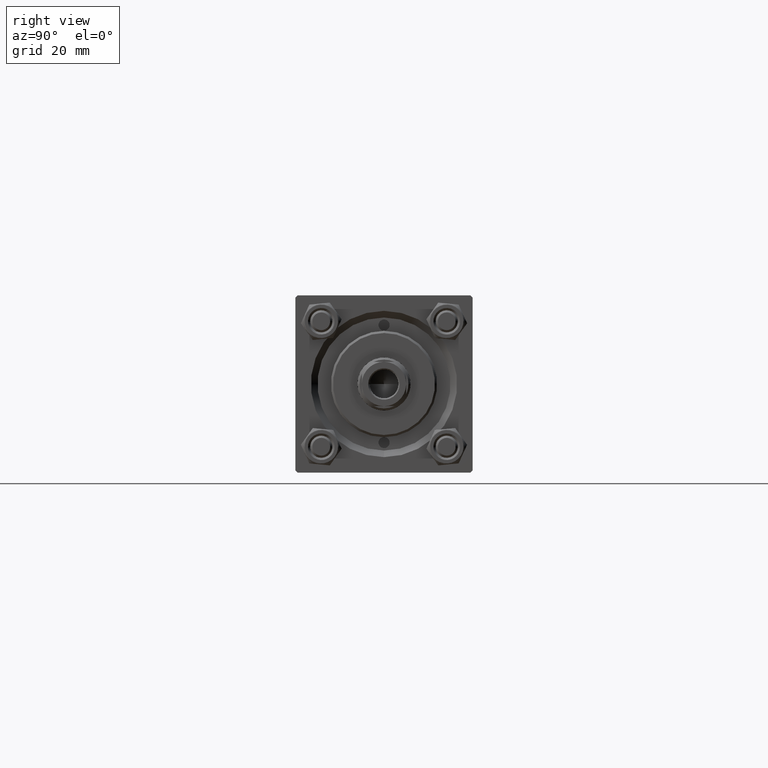
[diagram: clean part render]
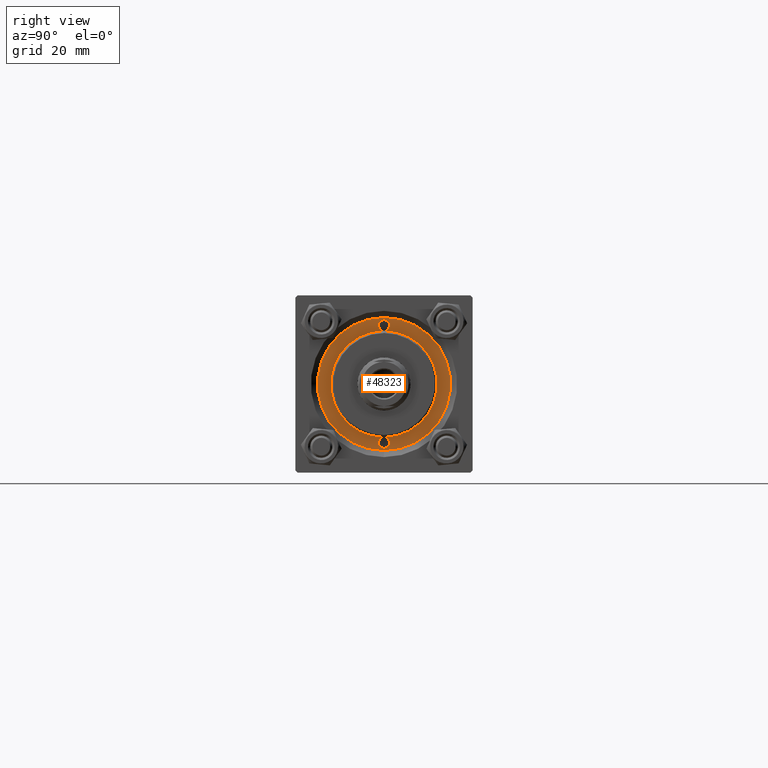
[diagram: same view with one face highlighted and labeled with its STEP entity id]
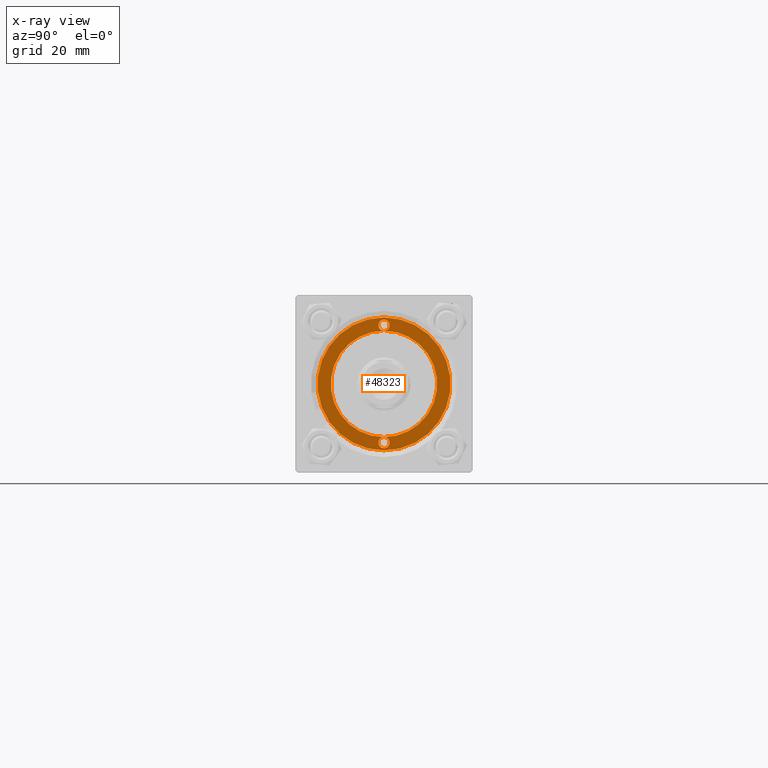
[diagram: x-ray of the same camera — body ghosted, the highlighted face saturated]
A machine part, right view. The second image highlights one B-rep face of the part: STEP entity #48323.
The next image is the same camera in x-ray: the body ghosted, the highlighted face saturated — about 0% of this face is hidden behind the body in this view.
In plain terms, the highlighted planar face has unit normal (1, 0, -0).
Its self-contained STEP definition (entity closure, byte-faithful):
#73 = EDGE_CURVE ( 'NONE', #36501, #44663, #46209, .T. ) ;
#397 = DIRECTION ( 'NONE',  ( 1.000000000000000000, 0.000000000000000000, 0.000000000000000000 ) ) ;
#400 = FACE_OUTER_BOUND ( 'NONE', #28099, .T. ) ;
#852 = EDGE_CURVE ( 'NONE', #20003, #15915, #19572, .T. ) ;
#2304 = AXIS2_PLACEMENT_3D ( 'NONE', #35248, #4183, #397 ) ;
#2479 = AXIS2_PLACEMENT_3D ( 'NONE', #18893, #26231, #19144 ) ;
#2691 = AXIS2_PLACEMENT_3D ( 'NONE', #15184, #11394, #42191 ) ;
#3589 = CARTESIAN_POINT ( 'NONE',  ( 13.25000000000000000, 0.000000000000000000, 28.69999999999999929 ) ) ;
#3684 = AXIS2_PLACEMENT_3D ( 'NONE', #34250, #15299, #38530 ) ;
#3839 = DIRECTION ( 'NONE',  ( 0.000000000000000000, 0.000000000000000000, 1.000000000000000000 ) ) ;
#4183 = DIRECTION ( 'NONE',  ( 0.000000000000000000, 0.000000000000000000, 1.000000000000000000 ) ) ;
#5446 = EDGE_CURVE ( 'NONE', #15915, #20003, #48663, .T. ) ;
#5473 = DIRECTION ( 'NONE',  ( 1.000000000000000000, 0.000000000000000000, 0.000000000000000000 ) ) ;
#5586 = CARTESIAN_POINT ( 'NONE',  ( -14.49999999999999822, 1.530808498934190585E-16, 28.69999999999999929 ) ) ;
#7237 = DIRECTION ( 'NONE',  ( 0.000000000000000000, 0.000000000000000000, 1.000000000000000000 ) ) ;
#10387 = CIRCLE ( 'NONE', #2304, 1.249999999999997558 ) ;
#10778 = EDGE_CURVE ( 'NONE', #35843, #47538, #25449, .T. ) ;
#11394 = DIRECTION ( 'NONE',  ( 0.000000000000000000, 0.000000000000000000, 1.000000000000000000 ) ) ;
#11770 = DIRECTION ( 'NONE',  ( 1.000000000000000000, 0.000000000000000000, -0.000000000000000000 ) ) ;
#12011 = FACE_BOUND ( 'NONE', #22355, .T. ) ;
#12066 = CARTESIAN_POINT ( 'NONE',  ( 13.25000000000000000, 0.000000000000000000, 28.69999999999999929 ) ) ;
#15184 = CARTESIAN_POINT ( 'NONE',  ( 0.000000000000000000, 0.000000000000000000, 28.69999999999999929 ) ) ;
#15299 = DIRECTION ( 'NONE',  ( 0.000000000000000000, 0.000000000000000000, 1.000000000000000000 ) ) ;
#15775 = CARTESIAN_POINT ( 'NONE',  ( 14.49999999999999822, 0.000000000000000000, 28.69999999999999929 ) ) ;
#15915 = VERTEX_POINT ( 'NONE', #15775 ) ;
#16672 = ORIENTED_EDGE ( 'NONE', *, *, #852, .F. ) ;
#17394 = EDGE_CURVE ( 'NONE', #44663, #36501, #44710, .T. ) ;
#18893 = CARTESIAN_POINT ( 'NONE',  ( 0.000000000000000000, 0.000000000000000000, 28.69999999999999929 ) ) ;
#19144 = DIRECTION ( 'NONE',  ( 1.000000000000000000, 0.000000000000000000, 0.000000000000000000 ) ) ;
#19572 = CIRCLE ( 'NONE', #47788, 1.249999999999999334 ) ;
#20003 = VERTEX_POINT ( 'NONE', #49712 ) ;
#20629 = DIRECTION ( 'NONE',  ( 0.000000000000000000, 0.000000000000000000, 1.000000000000000000 ) ) ;
#22355 = EDGE_LOOP ( 'NONE', ( #38511, #23078, #34318, #48631, #36368, #16672 ) ) ;
#22659 = CIRCLE ( 'NONE', #2479, 12.00000000000000178 ) ;
#23078 = ORIENTED_EDGE ( 'NONE', *, *, #32602, .F. ) ;
#23671 = DIRECTION ( 'NONE',  ( 0.000000000000000000, 0.000000000000000000, 1.000000000000000000 ) ) ;
#23745 = CARTESIAN_POINT ( 'NONE',  ( 0.000000000000000000, 0.000000000000000000, 28.69999999999999929 ) ) ;
#23980 = CARTESIAN_POINT ( 'NONE',  ( 15.00000000000000000, 1.836970198721029589E-15, 28.69999999999999929 ) ) ;
#25449 = CIRCLE ( 'NONE', #3684, 1.249999999999997558 ) ;
#26231 = DIRECTION ( 'NONE',  ( 0.000000000000000000, 0.000000000000000000, 1.000000000000000000 ) ) ;
#28099 = EDGE_LOOP ( 'NONE', ( #45687, #30798 ) ) ;
#28207 = CARTESIAN_POINT ( 'NONE',  ( 0.000000000000000000, 0.000000000000000000, 28.69999999999999929 ) ) ;
#30472 = PLANE ( 'NONE',  #30989 ) ;
#30610 = DIRECTION ( 'NONE',  ( 1.000000000000000000, 0.000000000000000000, 0.000000000000000000 ) ) ;
#30798 = ORIENTED_EDGE ( 'NONE', *, *, #73, .T. ) ;
#30989 = AXIS2_PLACEMENT_3D ( 'NONE', #31211, #7237, #11770 ) ;
#31091 = DIRECTION ( 'NONE',  ( 0.000000000000000000, 0.000000000000000000, 1.000000000000000000 ) ) ;
#31211 = CARTESIAN_POINT ( 'NONE',  ( 0.000000000000000000, 0.000000000000000000, 28.69999999999999929 ) ) ;
#32521 = AXIS2_PLACEMENT_3D ( 'NONE', #12066, #23671, #39086 ) ;
#32590 = CARTESIAN_POINT ( 'NONE',  ( -12.00000000000000178, 0.000000000000000000, 28.69999999999999929 ) ) ;
#32602 = EDGE_CURVE ( 'NONE', #47538, #35843, #10387, .T. ) ;
#34250 = CARTESIAN_POINT ( 'NONE',  ( -13.25000000000000178, 0.000000000000000000, 28.69999999999999929 ) ) ;
#34318 = ORIENTED_EDGE ( 'NONE', *, *, #10778, .F. ) ;
#35248 = CARTESIAN_POINT ( 'NONE',  ( -13.25000000000000178, 0.000000000000000000, 28.69999999999999929 ) ) ;
#35843 = VERTEX_POINT ( 'NONE', #32590 ) ;
#36368 = ORIENTED_EDGE ( 'NONE', *, *, #5446, .F. ) ;
#36501 = VERTEX_POINT ( 'NONE', #23980 ) ;
#38511 = ORIENTED_EDGE ( 'NONE', *, *, #41344, .F. ) ;
#38530 = DIRECTION ( 'NONE',  ( 1.000000000000000000, 0.000000000000000000, 0.000000000000000000 ) ) ;
#39086 = DIRECTION ( 'NONE',  ( 1.000000000000000000, 0.000000000000000000, 0.000000000000000000 ) ) ;
#41344 = EDGE_CURVE ( 'NONE', #35843, #20003, #22659, .T. ) ;
#42191 = DIRECTION ( 'NONE',  ( 1.000000000000000000, 0.000000000000000000, 0.000000000000000000 ) ) ;
#42903 = CARTESIAN_POINT ( 'NONE',  ( -15.00000000000000000, 0.000000000000000000, 28.69999999999999929 ) ) ;
#43430 = DIRECTION ( 'NONE',  ( 1.000000000000000000, 0.000000000000000000, 0.000000000000000000 ) ) ;
#44584 = AXIS2_PLACEMENT_3D ( 'NONE', #23745, #31091, #43430 ) ;
#44663 = VERTEX_POINT ( 'NONE', #42903 ) ;
#44710 = CIRCLE ( 'NONE', #46326, 15.00000000000000000 ) ;
#45687 = ORIENTED_EDGE ( 'NONE', *, *, #17394, .T. ) ;
#46209 = CIRCLE ( 'NONE', #44584, 15.00000000000000000 ) ;
#46326 = AXIS2_PLACEMENT_3D ( 'NONE', #28207, #20629, #5473 ) ;
#47538 = VERTEX_POINT ( 'NONE', #5586 ) ;
#47788 = AXIS2_PLACEMENT_3D ( 'NONE', #3589, #3839, #30610 ) ;
#47823 = EDGE_CURVE ( 'NONE', #20003, #35843, #48683, .T. ) ;
#48323 = ADVANCED_FACE ( 'NONE', ( #12011, #400 ), #30472, .T. ) ;
#48631 = ORIENTED_EDGE ( 'NONE', *, *, #47823, .F. ) ;
#48663 = CIRCLE ( 'NONE', #32521, 1.249999999999999334 ) ;
#48683 = CIRCLE ( 'NONE', #2691, 12.00000000000000178 ) ;
#49712 = CARTESIAN_POINT ( 'NONE',  ( 12.00000000000000178, 0.000000000000000000, 28.69999999999999929 ) ) ;